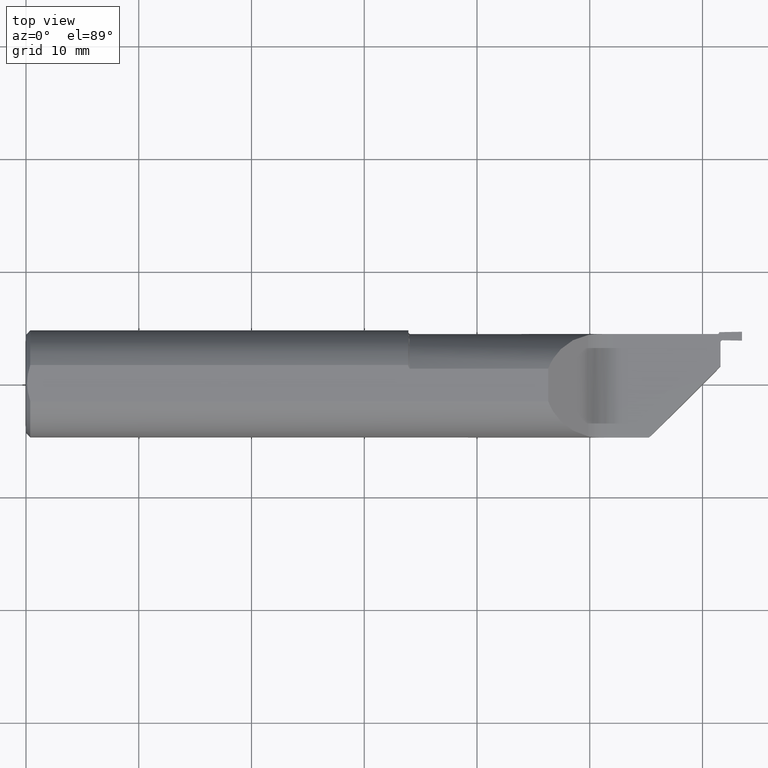
[diagram: clean part render]
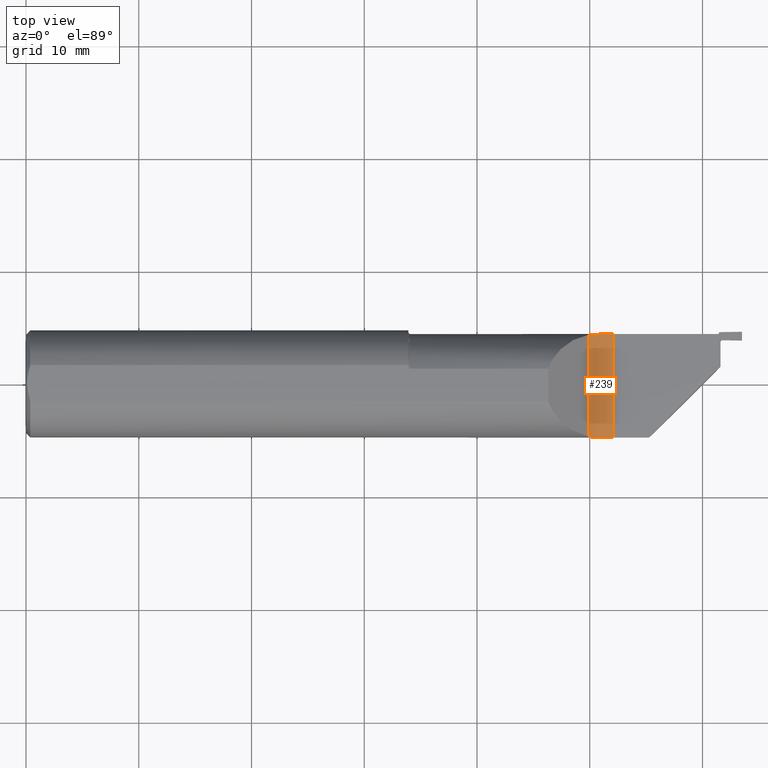
[diagram: same view with one face highlighted and labeled with its STEP entity id]
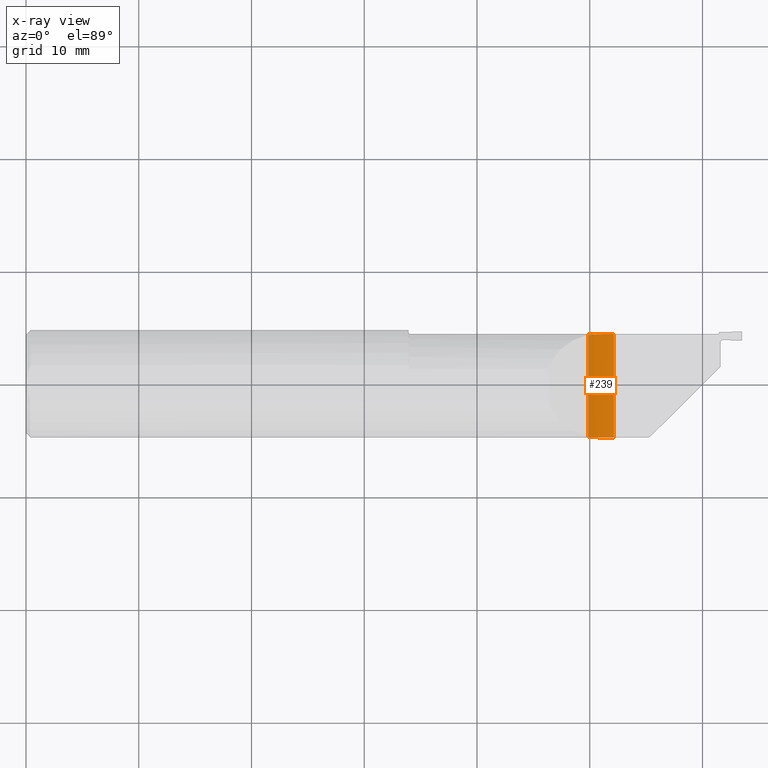
[diagram: x-ray of the same camera — body ghosted, the highlighted face saturated]
A machine part, top view. The second image highlights one B-rep face of the part: STEP entity #239.
The next image is the same camera in x-ray: the body ghosted, the highlighted face saturated — about 0% of this face is hidden behind the body in this view.
In plain terms, the highlighted cylindrical surface (edge-blend (fillet) strip) has radius 3.175 mm, axis along (0, 1, 0).
Its self-contained STEP definition (entity closure, byte-faithful):
#2 = ORIENTED_EDGE ( 'NONE', *, *, #270, .F. ) ;
#12 = CARTESIAN_POINT ( 'NONE',  ( 2.043518208465806119, 0.1743492383597801676, 2.004200005117457956E-17 ) ) ;
#16 = CARTESIAN_POINT ( 'NONE',  ( 2.051776695296636976, 0.2873499999999999943, 0.1250000000000000000 ) ) ;
#18 = AXIS2_PLACEMENT_3D ( 'NONE', #16, #612, #150 ) ;
#22 = CARTESIAN_POINT ( 'NONE',  ( 2.043515043950825838, -0.1873499999999999888, 3.001297844601850477E-19 ) ) ;
#67 = FACE_OUTER_BOUND ( 'NONE', #516, .T. ) ;
#77 = CARTESIAN_POINT ( 'NONE',  ( 1.963388347648318932, -0.1837378823544007778, 0.03661165235168152565 ) ) ;
#79 = VERTEX_POINT ( 'NONE', #399 ) ;
#91 = CARTESIAN_POINT ( 'NONE',  ( 2.051776695296636976, -0.1873499999999999888, 0.000000000000000000 ) ) ;
#95 = CARTESIAN_POINT ( 'NONE',  ( 2.051776695296636976, -0.2873499999999999943, 0.000000000000000000 ) ) ;
#98 = DIRECTION ( 'NONE',  ( -0.000000000000000000, -1.000000000000000000, -0.000000000000000000 ) ) ;
#129 = CARTESIAN_POINT ( 'NONE',  ( 1.969175886172399359, 0.1718923342275688881, 0.03082411382760027324 ) ) ;
#145 = CARTESIAN_POINT ( 'NONE',  ( 1.969176586392017869, -0.1848912481268661367, 0.03082341360798271021 ) ) ;
#150 = DIRECTION ( 'NONE',  ( 0.000000000000000000, 0.000000000000000000, 1.000000000000000000 ) ) ;
#151 = CARTESIAN_POINT ( 'NONE',  ( 2.035390929681094807, -0.1873549854116181856, 0.0008110107679984991354 ) ) ;
#165 = LINE ( 'NONE', #95, #657 ) ;
#171 = ORIENTED_EDGE ( 'NONE', *, *, #577, .F. ) ;
#199 = CARTESIAN_POINT ( 'NONE',  ( 1.989151228518893477, -0.1866765615736736272, 0.01651232730745808355 ) ) ;
#215 = CARTESIAN_POINT ( 'NONE',  ( 2.011402846495882635, 0.1742657643842316917, 0.006416841385945333369 ) ) ;
#217 = ORIENTED_EDGE ( 'NONE', *, *, #474, .F. ) ;
#239 = ADVANCED_FACE ( 'NONE', ( #67 ), #693, .F. ) ;
#263 = CARTESIAN_POINT ( 'NONE',  ( 2.051776695296636976, 0.1743492383597801676, 0.000000000000000000 ) ) ;
#270 = EDGE_CURVE ( 'NONE', #79, #525, #326, .T. ) ;
#315 = CARTESIAN_POINT ( 'NONE',  ( 2.051776695296636976, -0.1873499999999999888, 0.000000000000000000 ) ) ;
#326 = B_SPLINE_CURVE_WITH_KNOTS ( 'NONE', 3,
 ( #477, #129, #490, #772, #755, #215, #901, #689, #12, #263 ),
 .UNSPECIFIED., .F., .F.,
 ( 4, 2, 2, 2, 4 ),
 ( 0.000000000000000000, 0.0006203411018093670914, 0.001240682203618734183, 0.001861023305428101274, 0.002481364407237468366 ),
 .UNSPECIFIED. ) ;
#355 = CARTESIAN_POINT ( 'NONE',  ( 2.011462618758882659, -0.1872671557635287864, 0.006396047567269131165 ) ) ;
#380 = VERTEX_POINT ( 'NONE', #553 ) ;
#383 = CARTESIAN_POINT ( 'NONE',  ( 1.963388347648318932, 0.2873499999999999943, 0.03661165235168144932 ) ) ;
#394 = B_SPLINE_CURVE_WITH_KNOTS ( 'NONE', 3,
 ( #315, #22, #151, #430, #355, #710, #199, #642, #145, #77 ),
 .UNSPECIFIED., .F., .F.,
 ( 4, 2, 2, 2, 4 ),
 ( 0.000000000000000000, 0.0006206708188418187102, 0.001241341637683637420, 0.001862012456525456022, 0.002482683275367274841 ),
 .UNSPECIFIED. ) ;
#399 = CARTESIAN_POINT ( 'NONE',  ( 1.963388347648318710, 0.1707400671470789000, 0.03661165235168143545 ) ) ;
#430 = CARTESIAN_POINT ( 'NONE',  ( 2.019406815221594709, -0.1873142647345006628, 0.003989301195303232572 ) ) ;
#472 = EDGE_CURVE ( 'NONE', #380, #79, #547, .T. ) ;
#474 = EDGE_CURVE ( 'NONE', #698, #380, #394, .T. ) ;
#477 = CARTESIAN_POINT ( 'NONE',  ( 1.963388347648318710, 0.1707400671470789000, 0.03661165235168143545 ) ) ;
#490 = CARTESIAN_POINT ( 'NONE',  ( 1.975456747076115072, 0.1726394736848242961, 0.02567045653326194277 ) ) ;
#501 = ORIENTED_EDGE ( 'NONE', *, *, #472, .F. ) ;
#516 = EDGE_LOOP ( 'NONE', ( #2, #501, #217, #171 ) ) ;
#525 = VERTEX_POINT ( 'NONE', #767 ) ;
#547 = LINE ( 'NONE', #383, #650 ) ;
#553 = CARTESIAN_POINT ( 'NONE',  ( 1.963388347648318932, -0.1837378823544007778, 0.03661165235168152565 ) ) ;
#577 = EDGE_CURVE ( 'NONE', #525, #698, #165, .T. ) ;
#612 = DIRECTION ( 'NONE',  ( 0.000000000000000000, 1.000000000000000000, 0.000000000000000000 ) ) ;
#642 = CARTESIAN_POINT ( 'NONE',  ( 1.975584630924563934, -0.1856528012981897013, 0.02557015768846748055 ) ) ;
#650 = VECTOR ( 'NONE', #663, 39.37007874015748143 ) ;
#657 = VECTOR ( 'NONE', #98, 39.37007874015748143 ) ;
#663 = DIRECTION ( 'NONE',  ( 0.000000000000000000, 1.000000000000000000, 0.000000000000000000 ) ) ;
#689 = CARTESIAN_POINT ( 'NONE',  ( 2.035252298051418052, 0.1743543119172813738, 0.0008268482096370587250 ) ) ;
#693 = CYLINDRICAL_SURFACE ( 'NONE', #18, 0.1250000000000000000 ) ;
#698 = VERTEX_POINT ( 'NONE', #91 ) ;
#710 = CARTESIAN_POINT ( 'NONE',  ( 1.996326790910569082, -0.1869473204897925123, 0.01267266404239195815 ) ) ;
#755 = CARTESIAN_POINT ( 'NONE',  ( 1.996282164411133930, 0.1739453693091476960, 0.01269519059421281640 ) ) ;
#767 = CARTESIAN_POINT ( 'NONE',  ( 2.051776695296636976, 0.1743492383597801676, 0.000000000000000000 ) ) ;
#772 = CARTESIAN_POINT ( 'NONE',  ( 1.988965638552542048, 0.1736665399885003458, 0.01662166336216467158 ) ) ;
#901 = CARTESIAN_POINT ( 'NONE',  ( 2.019197208109889896, 0.1743125433629941212, 0.004042964882075219743 ) ) ;